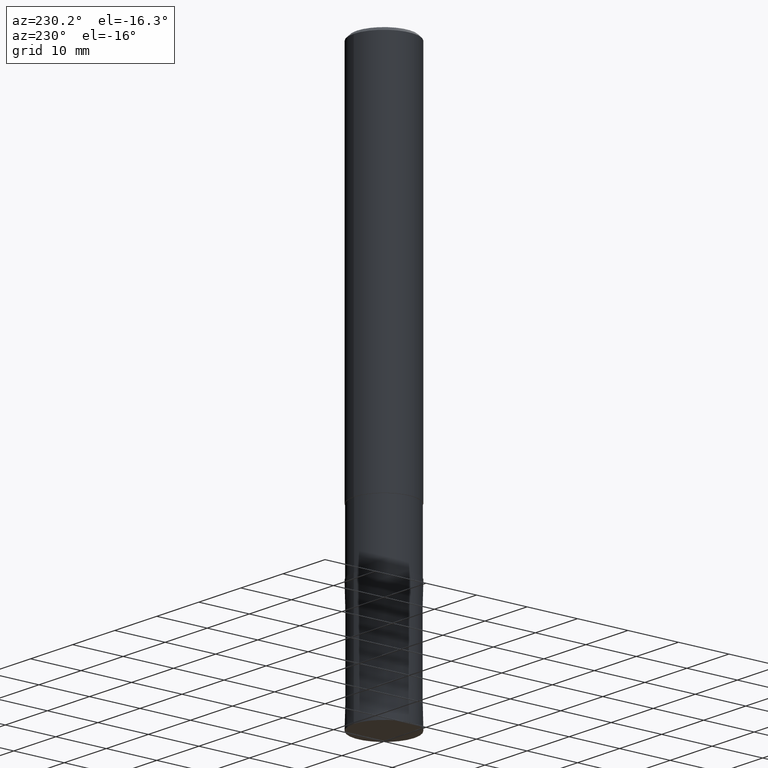
[diagram: clean part render]
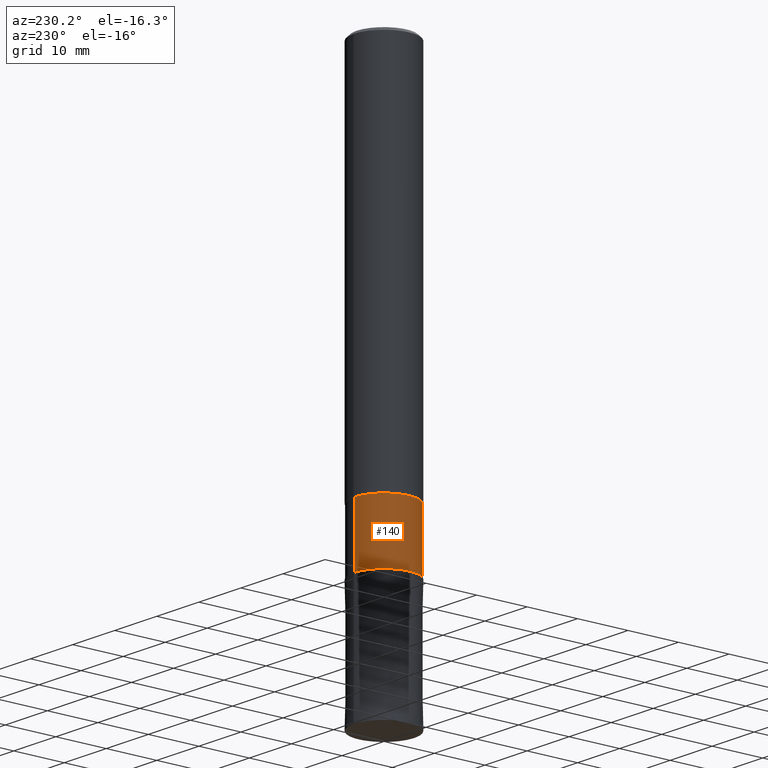
[diagram: same view with one face highlighted and labeled with its STEP entity id]
A machine part, auxiliary view. The second image highlights one B-rep face of the part: STEP entity #140.
In plain terms, the highlighted cylindrical surface (partial cylindrical patch) has radius 5.91 mm, axis along (-0, -0, 1).
Its self-contained STEP definition (entity closure, byte-faithful):
#90=EDGE_CURVE('',#98,#94,#214,.T.);
#94=VERTEX_POINT('',#218);
#98=VERTEX_POINT('',#223);
#104=VERTEX_POINT('',#229);
#108=EDGE_CURVE('',#98,#104,#233,.T.);
#114=EDGE_CURVE('',#94,#172,#240,.T.);
#140=ADVANCED_FACE('',(#269),#270,.T.);
#172=VERTEX_POINT('',#306);
#178=EDGE_CURVE('',#172,#104,#312,.T.);
#214=LINE('',#342,#343);
#218=CARTESIAN_POINT('',(7.23736232077256E-016,-5.90995,-74.0));
#223=CARTESIAN_POINT('',(7.23736232077256E-016,-5.90995,-86.0));
#229=CARTESIAN_POINT('',(0.0,5.90995,-86.0));
#233=CIRCLE('',#368,5.90995);
#240=CIRCLE('',#376,5.90995);
#269=FACE_OUTER_BOUND('',#412,.T.);
#270=CYLINDRICAL_SURFACE('',#413,5.90995);
#306=CARTESIAN_POINT('',(0.0,5.90995,-74.0));
#312=LINE('',#465,#466);
#342=CARTESIAN_POINT('',(7.23736232077256E-016,-5.90995,-80.0));
#343=VECTOR('',#498,1.0);
#368=AXIS2_PLACEMENT_3D('',#512,#513,#514);
#376=AXIS2_PLACEMENT_3D('',#521,#522,#523);
#412=EDGE_LOOP('',(#558,#559,#560,#561));
#413=AXIS2_PLACEMENT_3D('',#562,#563,#564);
#465=CARTESIAN_POINT('',(-7.23736232077256E-016,5.90995,-80.0));
#466=VECTOR('',#612,1.0);
#498=DIRECTION('',(-0.0,-0.0,1.0));
#512=CARTESIAN_POINT('',(0.0,0.0,-86.0));
#513=DIRECTION('',(0.0,0.0,-1.0));
#514=DIRECTION('',(0.0,1.0,0.0));
#521=CARTESIAN_POINT('',(0.0,0.0,-74.0));
#522=DIRECTION('',(0.0,0.0,-1.0));
#523=DIRECTION('',(0.0,1.0,0.0));
#558=ORIENTED_EDGE('',*,*,#178,.T.);
#559=ORIENTED_EDGE('',*,*,#108,.F.);
#560=ORIENTED_EDGE('',*,*,#90,.T.);
#561=ORIENTED_EDGE('',*,*,#114,.T.);
#562=CARTESIAN_POINT('',(0.0,0.0,-80.0));
#563=DIRECTION('',(-0.0,-0.0,1.0));
#564=DIRECTION('',(0.0,1.0,0.0));
#612=DIRECTION('',(0.0,0.0,-1.0));